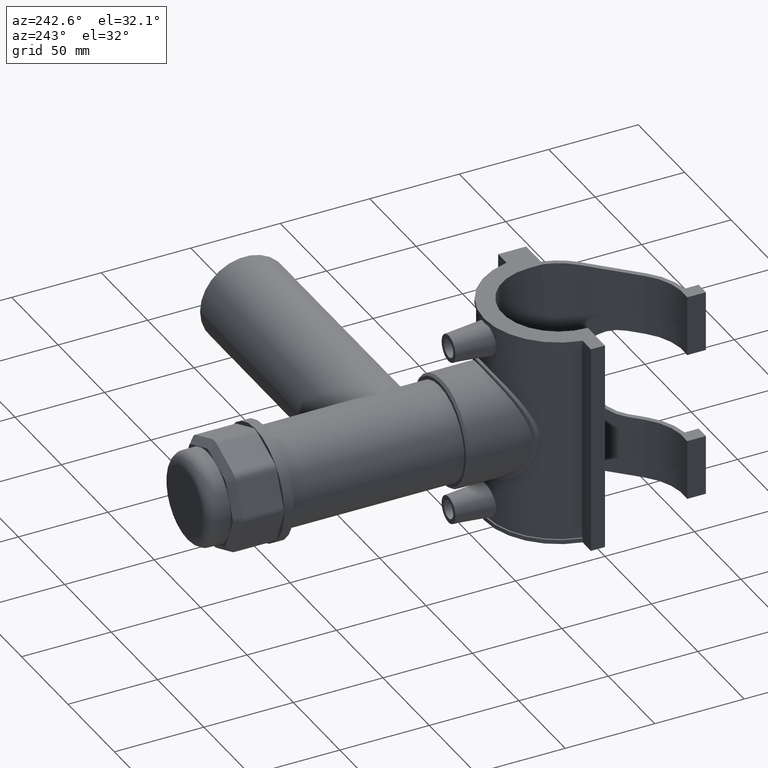
[diagram: clean part render]
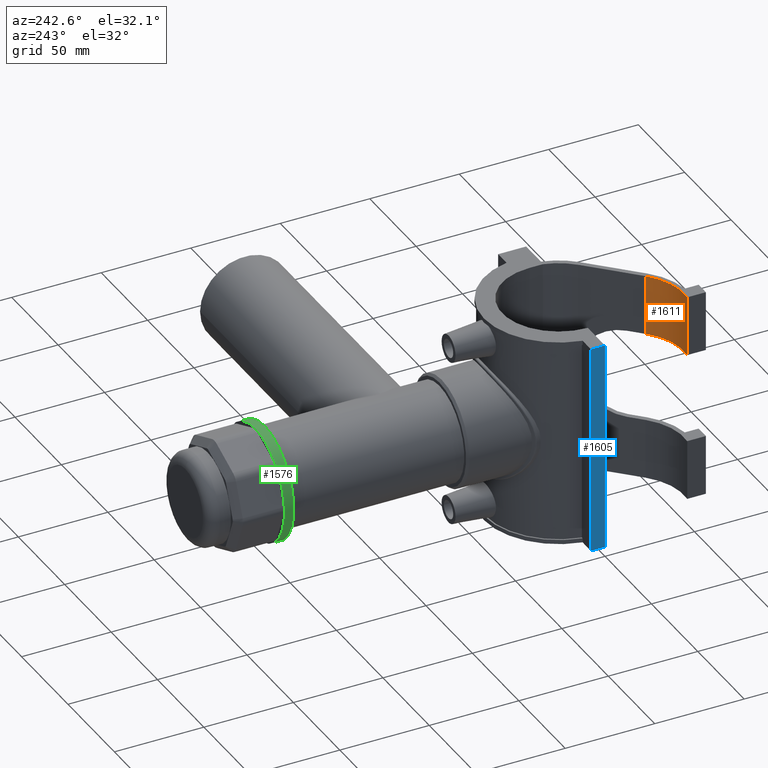
[diagram: same view with three faces highlighted in distinct colors, each labeled with its STEP entity id]
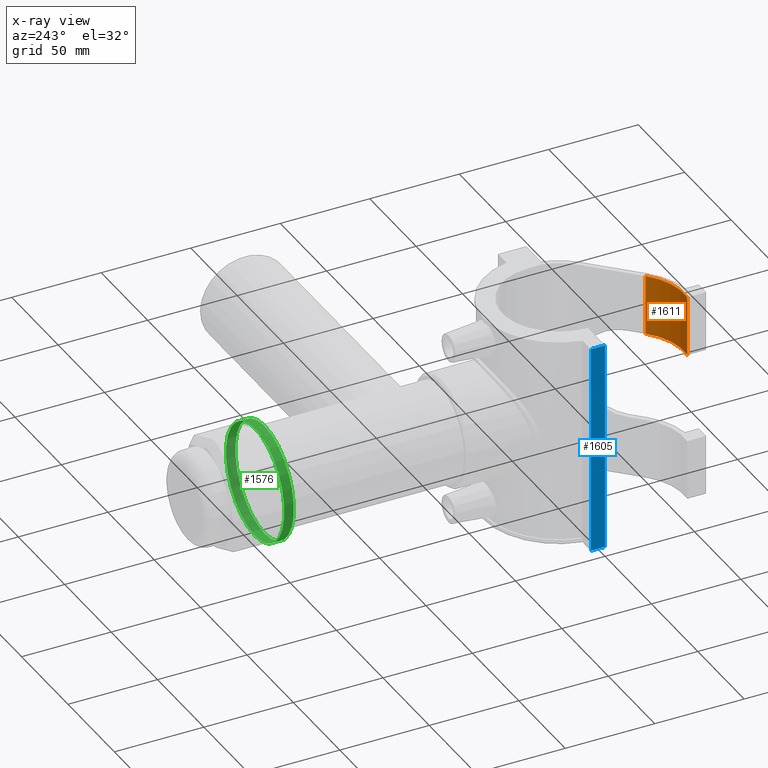
[diagram: x-ray of the same camera — body ghosted, the three highlighted faces saturated]
A machine part, auxiliary view with three faces highlighted in distinct colors.
The next image is the same camera in x-ray (body ghosted, the three faces saturated) — at least one of them is partly hidden behind the body in this view.
Their STEP definitions:

[orange] entity #1611 — the highlighted cylindrical surface (partial cylindrical patch) has radius 32.3751 mm, axis along (0, 0, -1).
#130=LINE('',#3240,#265);
#131=LINE('',#3243,#266);
#265=VECTOR('',#2200,33.8);
#266=VECTOR('',#2203,33.8);
#368=CYLINDRICAL_SURFACE('',#1779,32.375103956558);
#455=FACE_OUTER_BOUND('',#589,.T.);
#589=EDGE_LOOP('',(#1369,#1370,#1371,#1372));
#665=CIRCLE('',#1767,32.375103956558);
#673=CIRCLE('',#1780,32.375103956558);
#784=VERTEX_POINT('',#3189);
#790=VERTEX_POINT('',#3201);
#804=VERTEX_POINT('',#3239);
#805=VERTEX_POINT('',#3241);
#982=EDGE_CURVE('',#784,#790,#665,.T.);
#1000=EDGE_CURVE('',#804,#790,#130,.T.);
#1001=EDGE_CURVE('',#805,#804,#673,.T.);
#1002=EDGE_CURVE('',#805,#784,#131,.T.);
#1369=ORIENTED_EDGE('',*,*,#982,.T.);
#1370=ORIENTED_EDGE('',*,*,#1000,.F.);
#1371=ORIENTED_EDGE('',*,*,#1001,.F.);
#1372=ORIENTED_EDGE('',*,*,#1002,.T.);
#1611=ADVANCED_FACE('',(#455),#368,.F.);
#1767=AXIS2_PLACEMENT_3D('',#3203,#2164,#2165);
#1779=AXIS2_PLACEMENT_3D('',#3238,#2198,#2199);
#1780=AXIS2_PLACEMENT_3D('',#3242,#2201,#2202);
#2164=DIRECTION('center_axis',(-1.5576314092739E-16,-1.55763140557486E-16,
-1.));
#2165=DIRECTION('ref_axis',(0.128765786070608,0.991675033636331,0.));
#2198=DIRECTION('center_axis',(0.,0.,-1.));
#2199=DIRECTION('ref_axis',(0.128765786070608,0.991675033636331,0.));
#2200=DIRECTION('',(0.,0.,-1.));
#2201=DIRECTION('center_axis',(0.,0.,-1.));
#2202=DIRECTION('ref_axis',(0.128765786070608,0.991675033636331,0.));
#2203=DIRECTION('',(0.,0.,-1.));
#3189=CARTESIAN_POINT('',(-1.83848658521296,-47.6237976250849,25.2));
#3201=CARTESIAN_POINT('',(-28.8999478174158,-56.8367243537001,25.2));
#3203=CARTESIAN_POINT('Origin',(-24.731142107332,-24.7311420486008,25.2));
#3238=CARTESIAN_POINT('Origin',(-24.731142107332,-24.7311420486008,59.));
#3239=CARTESIAN_POINT('',(-28.8999478174158,-56.8367243537001,59.));
#3240=CARTESIAN_POINT('',(-28.8999478174158,-56.8367243537001,59.));
#3241=CARTESIAN_POINT('',(-1.83848658521296,-47.6237976250849,59.));
#3242=CARTESIAN_POINT('Origin',(-24.731142107332,-24.7311420486008,59.));
#3243=CARTESIAN_POINT('',(-1.83848658521296,-47.6237976250849,59.));

[blue] entity #1605 — the highlighted planar face has unit normal (-1, 0, 0).
#98=LINE('',#3116,#233);
#103=LINE('',#3163,#238);
#111=LINE('',#3178,#246);
#112=LINE('',#3182,#247);
#233=VECTOR('',#2068,118.);
#238=VECTOR('',#2127,118.);
#246=VECTOR('',#2139,7.82499999999999);
#247=VECTOR('',#2146,7.82499999999999);
#449=FACE_OUTER_BOUND('',#583,.T.);
#583=EDGE_LOOP('',(#1334,#1335,#1336,#1337));
#761=VERTEX_POINT('',#3113);
#762=VERTEX_POINT('',#3115);
#775=VERTEX_POINT('',#3159);
#777=VERTEX_POINT('',#3162);
#945=EDGE_CURVE('',#761,#762,#98,.T.);
#962=EDGE_CURVE('',#777,#775,#103,.T.);
#970=EDGE_CURVE('',#762,#775,#111,.T.);
#973=EDGE_CURVE('',#777,#761,#112,.T.);
#1334=ORIENTED_EDGE('',*,*,#962,.T.);
#1335=ORIENTED_EDGE('',*,*,#970,.F.);
#1336=ORIENTED_EDGE('',*,*,#945,.F.);
#1337=ORIENTED_EDGE('',*,*,#973,.F.);
#1510=PLANE('',#1764);
#1605=ADVANCED_FACE('',(#449),#1510,.T.);
#1764=AXIS2_PLACEMENT_3D('',#3186,#2152,#2153);
#2068=DIRECTION('',(0.,0.,1.));
#2127=DIRECTION('',(0.,0.,1.));
#2139=DIRECTION('',(-5.6392280615881E-16,-1.,0.));
#2146=DIRECTION('',(5.6392280615881E-16,1.,0.));
#2152=DIRECTION('center_axis',(-1.,5.6392280615881E-16,0.));
#2153=DIRECTION('ref_axis',(-7.105427357601E-16,-1.,0.));
#3113=CARTESIAN_POINT('',(-50.,7.875,-59.));
#3115=CARTESIAN_POINT('',(-50.,7.875,59.));
#3116=CARTESIAN_POINT('',(-50.,7.875,0.));
#3159=CARTESIAN_POINT('',(-50.,0.0500000000000078,59.));
#3162=CARTESIAN_POINT('',(-50.,0.0500000000000078,-59.));
#3163=CARTESIAN_POINT('',(-50.,0.0500000000000078,-29.5));
#3178=CARTESIAN_POINT('',(-50.,7.875,59.));
#3182=CARTESIAN_POINT('',(-50.,7.875,-59.));
#3186=CARTESIAN_POINT('Origin',(-50.,7.875,0.));

[green] entity #1576 — the highlighted cylindrical surface (bore or boss wall) has radius 31.5 mm, axis along (0, 1, 0).
#315=FACE_BOUND('',#538,.T.);
#355=CYLINDRICAL_SURFACE('',#1717,31.5);
#420=FACE_OUTER_BOUND('',#537,.T.);
#537=EDGE_LOOP('',(#1230));
#538=EDGE_LOOP('',(#1231));
#642=CIRCLE('',#1712,31.5);
#644=CIRCLE('',#1716,31.5);
#741=VERTEX_POINT('',#2755);
#743=VERTEX_POINT('',#2761);
#920=EDGE_CURVE('',#741,#741,#642,.T.);
#922=EDGE_CURVE('',#743,#743,#644,.T.);
#1230=ORIENTED_EDGE('',*,*,#922,.T.);
#1231=ORIENTED_EDGE('',*,*,#920,.F.);
#1576=ADVANCED_FACE('',(#420,#315),#355,.T.);
#1712=AXIS2_PLACEMENT_3D('',#2756,#2020,#2021);
#1716=AXIS2_PLACEMENT_3D('',#2762,#2028,#2029);
#1717=AXIS2_PLACEMENT_3D('',#2763,#2030,#2031);
#2020=DIRECTION('center_axis',(0.,1.,3.06161699786838E-16));
#2021=DIRECTION('ref_axis',(1.,0.,0.));
#2028=DIRECTION('center_axis',(0.,1.,3.06161699786838E-16));
#2029=DIRECTION('ref_axis',(1.,0.,0.));
#2030=DIRECTION('center_axis',(0.,1.,3.06161699786838E-16));
#2031=DIRECTION('ref_axis',(0.,0.,1.));
#2755=CARTESIAN_POINT('',(0.,169.56,31.5000000000001));
#2756=CARTESIAN_POINT('Origin',(0.,169.56,4.22686842725709E-14));
#2761=CARTESIAN_POINT('',(0.,164.25,31.5));
#2762=CARTESIAN_POINT('Origin',(0.,164.25,4.06429656467028E-14));
#2763=CARTESIAN_POINT('Origin',(0.,166.905,4.14558249596368E-14));